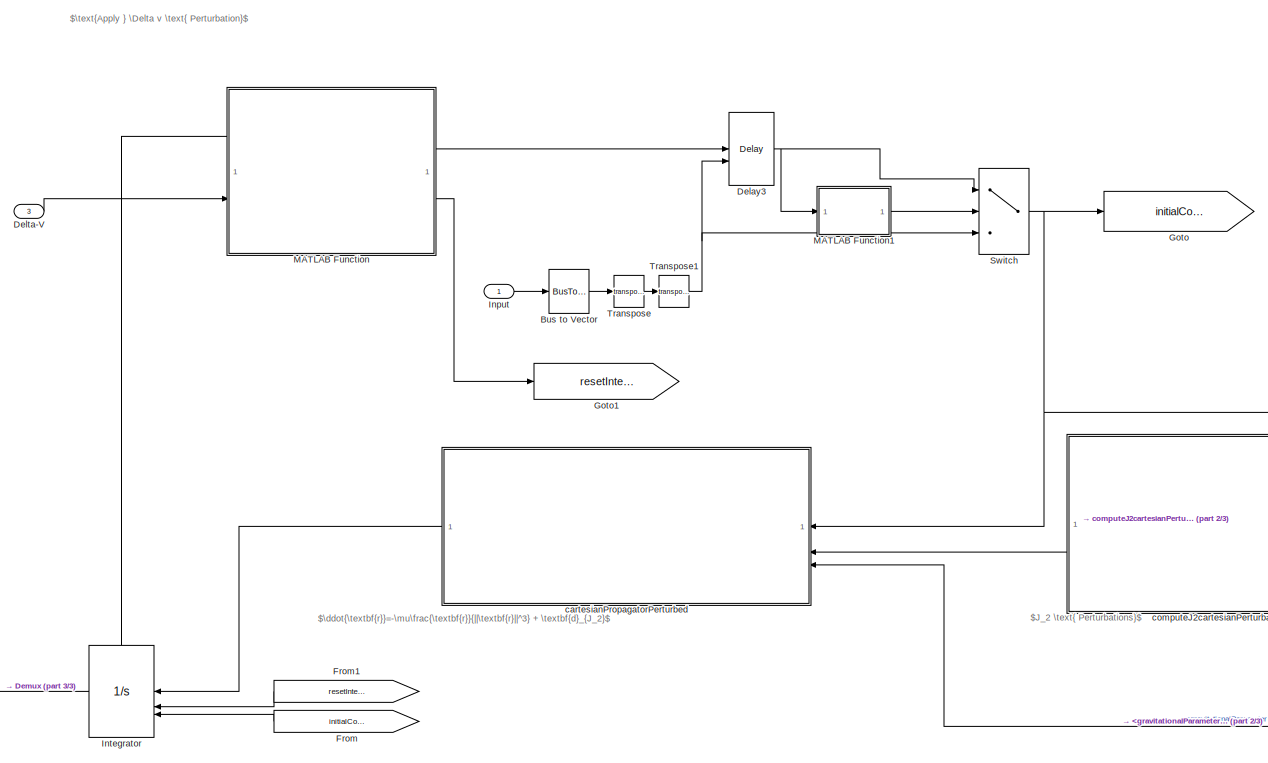
[diagram: root canvas - part 1/3, center side, full height]
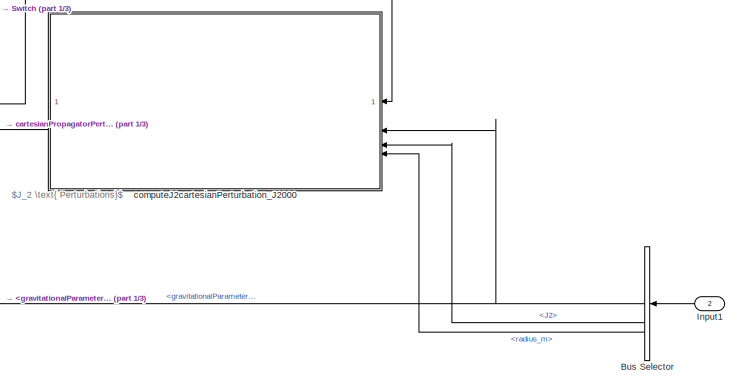
[diagram: root canvas - part 2/3, bottom right region]
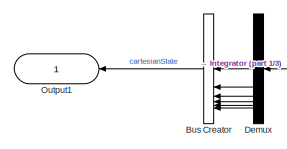
[diagram: root canvas - part 3/3, bottom left region]
MODEL slx_7c38b8bf9ce3
KIND model
CONFIG AbsTol = auto
CONFIG EnableMultiTasking = off
CONFIG FixedStep = dt
CONFIG MaxStep = max_step_size
CONFIG MinStep = auto
CONFIG RelTol = relative_tolerance
CONFIG SampleTimeConstraint = Unconstrained
CONFIG SolverName = ode4
CONFIG StartTime = 0.0
CONFIG StopTime = 10.0
BLOCK [BusCreator] Bus Creator
  DisplayOption = bar
  InheritFromInputs = off
  Inputs = 6
  NonVirtualBus = on
  OutDataTypeStr = Bus: cartesianState
BLOCK [BusSelector] Bus Selector
  OutputSignals = gravitationalParameter_m3_s2,J2,radius_m
BLOCK [BusToVector] Bus to Vector
BLOCK [Delay] Delay3
  DelayLength = 0
  InitialCondition = [0,0,0,0,0,0]
  InitialConditionSource = Input port
  InputPortMap = u0,p4
  NameLocation = top
BLOCK [Inport] Delta-V
  Port = 3
  PortDimensions = 3
  VarSizeSig = No
BLOCK [Demux] Demux
  Outputs = 6
BLOCK [From] From
  GotoTag = initialConditions
BLOCK [From] From1
  GotoTag = resetIntegrator
BLOCK [Goto] Goto
  GotoTag = initialConditions
BLOCK [Goto] Goto1
  GotoTag = resetIntegrator
BLOCK [Inport] Input
  IconDisplay = Port number and signal name
  OutDataTypeStr = Bus: cartesianState
BLOCK [Inport] Input1
  IconDisplay = Port number and signal name
  OutDataTypeStr = Bus: earthProperties
  Port = 2
BLOCK [Integrator] Integrator
  ExternalReset = rising
  InitialConditionSource = external
  ShowStatePort = on
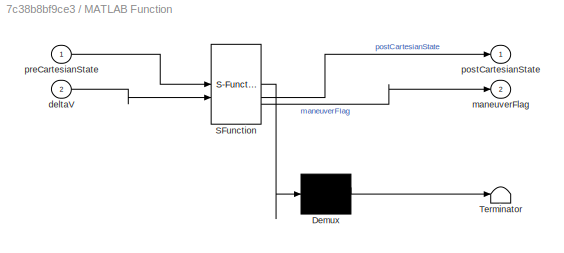
BLOCK [SubSystem] MATLAB Function
  ErrorFcn = Stateflow.Translate.translate
  LibrarySourceBlock = simulink/User-Defined\nFunctions/MATLAB Function
  PermitHierarchicalResolution = ExplicitOnly
  SFBlockType = MATLAB Function
  TreatAsAtomicUnit = on
BLOCK [Demux] MATLAB Function/ Demux 
  Outputs = 1
BLOCK [S-Function] MATLAB Function/ SFunction 
  EnableBusSupport = on
  FunctionName = sf_sfun
  PortCounts = [2 3]
  SFcnIsStateOwnerBlock = off
  SFunctionDeploymentMode = off
  Tag = Stateflow S-Function 3
BLOCK [Terminator] MATLAB Function/ Terminator 
BLOCK [Inport] MATLAB Function/deltaV
  Port = 2
BLOCK [Outport] MATLAB Function/maneuverFlag
  Port = 2
BLOCK [Outport] MATLAB Function/postCartesianState
BLOCK [Inport] MATLAB Function/preCartesianState
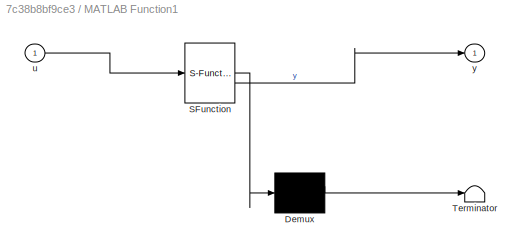
BLOCK [SubSystem] MATLAB Function1
  ErrorFcn = Stateflow.Translate.translate
  LibrarySourceBlock = simulink/User-Defined\nFunctions/MATLAB Function
  PermitHierarchicalResolution = ExplicitOnly
  SFBlockType = MATLAB Function
  TreatAsAtomicUnit = on
BLOCK [Demux] MATLAB Function1/ Demux 
  Outputs = 1
BLOCK [S-Function] MATLAB Function1/ SFunction 
  EnableBusSupport = on
  FunctionName = sf_sfun
  PortCounts = [1 2]
  SFcnIsStateOwnerBlock = off
  SFunctionDeploymentMode = off
  Tag = Stateflow S-Function 4
BLOCK [Terminator] MATLAB Function1/ Terminator 
BLOCK [Inport] MATLAB Function1/u
BLOCK [Outport] MATLAB Function1/y
BLOCK [Outport] Output1
  IconDisplay = Port number and signal name
  OutDataTypeStr = Bus: cartesianState
BLOCK [Switch] Switch
  Criteria = u2 ~= 0
  InputSameDT = off
  SaturateOnIntegerOverflow = off
BLOCK [Math] Transpose
  Operator = transpose
BLOCK [Math] Transpose1
  Operator = transpose
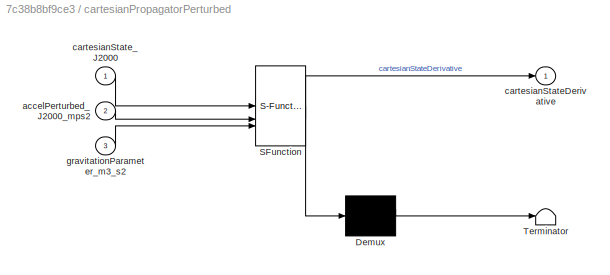
BLOCK [SubSystem] cartesianPropagatorPerturbed
  ErrorFcn = Stateflow.Translate.translate
  LibrarySourceBlock = simulink/User-Defined\nFunctions/MATLAB Function
  PermitHierarchicalResolution = ExplicitOnly
  SFBlockType = MATLAB Function
  TreatAsAtomicUnit = on
BLOCK [Demux] cartesianPropagatorPerturbed/ Demux 
  Outputs = 1
BLOCK [S-Function] cartesianPropagatorPerturbed/ SFunction 
  EnableBusSupport = on
  FunctionName = sf_sfun
  PortCounts = [3 2]
  SFcnIsStateOwnerBlock = off
  SFunctionDeploymentMode = off
  Tag = Stateflow S-Function 1
BLOCK [Terminator] cartesianPropagatorPerturbed/ Terminator 
BLOCK [Inport] cartesianPropagatorPerturbed/accelPerturbed_J2000_mps2
  Port = 2
BLOCK [Outport] cartesianPropagatorPerturbed/cartesianStateDerivative
BLOCK [Inport] cartesianPropagatorPerturbed/cartesianState_J2000
BLOCK [Inport] cartesianPropagatorPerturbed/gravitationParameter_m3_s2
  Port = 3
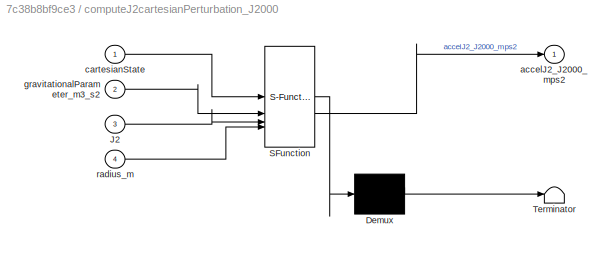
BLOCK [SubSystem] computeJ2cartesianPerturbation_J2000
  ErrorFcn = Stateflow.Translate.translate
  LibrarySourceBlock = simulink/User-Defined\nFunctions/MATLAB Function
  PermitHierarchicalResolution = ExplicitOnly
  SFBlockType = MATLAB Function
  TreatAsAtomicUnit = on
BLOCK [Demux] computeJ2cartesianPerturbation_J2000/ Demux 
  Outputs = 1
BLOCK [S-Function] computeJ2cartesianPerturbation_J2000/ SFunction 
  EnableBusSupport = on
  FunctionName = sf_sfun
  PortCounts = [4 2]
  SFcnIsStateOwnerBlock = off
  SFunctionDeploymentMode = off
  Tag = Stateflow S-Function 2
BLOCK [Terminator] computeJ2cartesianPerturbation_J2000/ Terminator 
BLOCK [Inport] computeJ2cartesianPerturbation_J2000/J2
  Port = 3
BLOCK [Outport] computeJ2cartesianPerturbation_J2000/accelJ2_J2000_mps2
BLOCK [Inport] computeJ2cartesianPerturbation_J2000/cartesianState
BLOCK [Inport] computeJ2cartesianPerturbation_J2000/gravitationalParameter_m3_s2
  Port = 2
BLOCK [Inport] computeJ2cartesianPerturbation_J2000/radius_m
  Port = 4
ANNOTATION (root): $J_2 \text{ Perturbations}$
ANNOTATION (root): $\ddot{\textbf{r}}=-\mu\frac{\textbf{r}}{||\textbf{r}||^3} + \textbf{d}_{J_2}$
ANNOTATION (root): $\text{Apply } \Delta v \text{ Perturbation}$
LINE Bus Creator:1 -> Output1:1
NET Bus Selector:1 -> cartesianPropagatorPerturbed:3, computeJ2cartesianPerturbation_J2000:2
LINE Bus Selector:2 -> computeJ2cartesianPerturbation_J2000:3
LINE Bus Selector:3 -> computeJ2cartesianPerturbation_J2000:4
LINE Bus to Vector:1 -> Transpose:1
NET Delay3:1 -> MATLAB Function1:1, Switch:1
LINE Delta-V:1 -> MATLAB Function:2
LINE Demux:1 -> Bus Creator:1
LINE Demux:2 -> Bus Creator:2
LINE Demux:3 -> Bus Creator:3
LINE Demux:4 -> Bus Creator:4
LINE Demux:5 -> Bus Creator:5
LINE Demux:6 -> Bus Creator:6
LINE From1:1 -> Integrator:2
LINE From:1 -> Integrator:3
LINE Input1:1 -> Bus Selector:1
LINE Input:1 -> Bus to Vector:1
LINE Integrator:1 -> Demux:1
LINE Integrator:state -> MATLAB Function:1
LINE MATLAB Function1:1 -> Switch:2
LINE MATLAB Function:1 -> Delay3:1
LINE MATLAB Function:2 -> Goto1:1
NET Switch:1 -> Goto:1, cartesianPropagatorPerturbed:1, computeJ2cartesianPerturbation_J2000:1
NET Transpose1:1 -> Delay3:2, Switch:3
LINE Transpose:1 -> Transpose1:1
LINE cartesianPropagatorPerturbed:1 -> Integrator:1
LINE computeJ2cartesianPerturbation_J2000:1 -> cartesianPropagatorPerturbed:2
note: NET lines group one-source signal fan-out (src -> all destinations, sorted); 1:1 wires keep LINE
CHART cartesianPropagatorPerturbed states=1 transitions=1
  STATE_LABEL 'eML_blk_kernel()'
  STATE_LABEL 'SCRIPT:\nfunction cartesianStateDerivative = cartesianPropagator(cartesianState_J2000,accelPerturbed_J2000_mps2,gravitationParameter_m3_s2)\n\ncartesianStateDerivative = cartesianPropagatorPerturbed(cartesianState_J2000,accelPerturbed_J2000_mps2,gravitationParameter_m3_s2);\n\nend\n'
CHART computeJ2cartesianPerturbation_J2000 states=1 transitions=1
  STATE_LABEL 'eML_blk_kernel()'
  STATE_LABEL 'SCRIPT:\nfunction accelJ2_J2000_mps2 = computeJ2accel(cartesianState,gravitationalParameter_m3_s2,J2,radius_m)\n\naccelJ2_J2000_mps2 = computeJ2cartesianPerturbation_J2000(cartesianState,gravitationalParameter_m3_s2,J2,radius_m);\n\nend\n'
CHART MATLAB Function states=1 transitions=1
  STATE_LABEL 'eML_blk_kernel()'
  STATE_LABEL 'SCRIPT:\nfunction [postCartesianState,maneuverFlag] = perturbCartesianState(preCartesianState,deltaV)\n[postCartesianState,maneuverFlag] = perturbCartesianState(preCartesianState,deltaV);\nend\n'
CHART MATLAB Function1 states=1 transitions=1
  STATE_LABEL 'eML_blk_kernel()'
  STATE_LABEL 'SCRIPT:\nfunction y = norm(u)\n\ny = norm(u);\nend\n'
CHART  states=0 transitions=0
CHART  states=0 transitions=0
CHART  states=0 transitions=0
CHART  states=0 transitions=0
